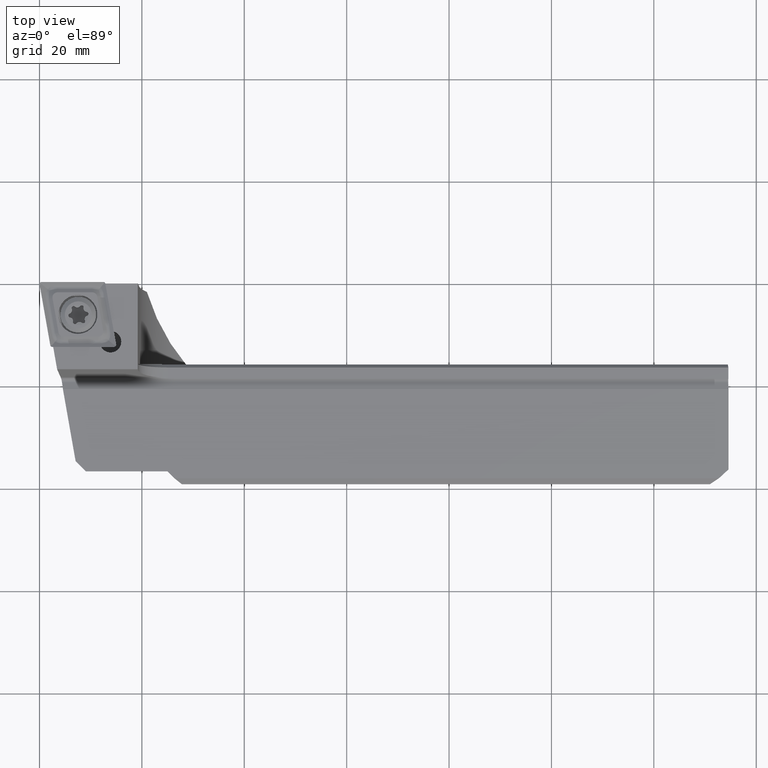
[diagram: clean part render]
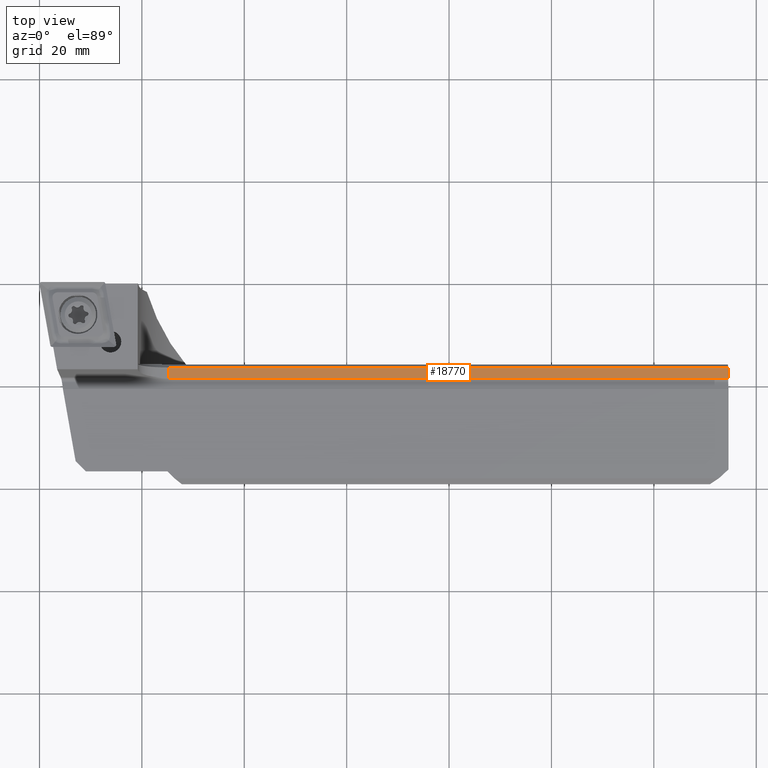
[diagram: same view with one face highlighted and labeled with its STEP entity id]
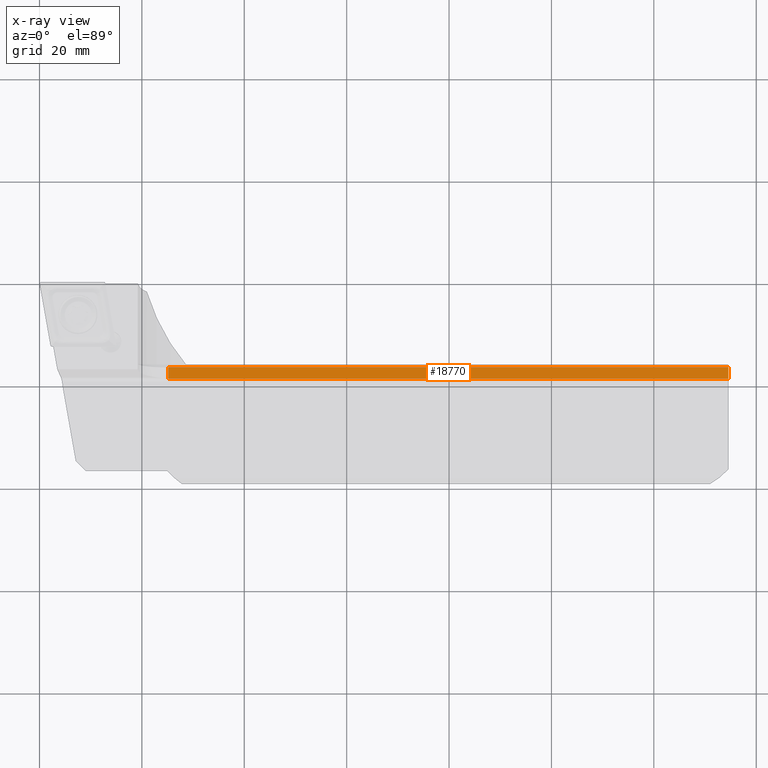
[diagram: x-ray of the same camera — body ghosted, the highlighted face saturated]
A machine part, top view. The second image highlights one B-rep face of the part: STEP entity #18770.
The next image is the same camera in x-ray: the body ghosted, the highlighted face saturated — about 0% of this face is hidden behind the body in this view.
In plain terms, the highlighted planar face has unit normal (-0, -0, -1).
Its self-contained STEP definition (entity closure, byte-faithful):
#34 = VECTOR ( 'NONE', #7114, 1000.000000000000000 ) ;
#1059 = PLANE ( 'NONE',  #13925 ) ;
#2573 = EDGE_CURVE ( 'NONE', #7593, #20589, #6076, .T. ) ;
#4870 = VECTOR ( 'NONE', #17412, 1000.000000000000000 ) ;
#5018 = LINE ( 'NONE', #14571, #34 ) ;
#5399 = EDGE_CURVE ( 'NONE', #21121, #13228, #17436, .T. ) ;
#6076 = LINE ( 'NONE', #17930, #4870 ) ;
#7114 = DIRECTION ( 'NONE',  ( -1.000000000000000000, 0.0000000000000000000, 1.063288424787860800E-017 ) ) ;
#7474 = VECTOR ( 'NONE', #21105, 1000.000000000000000 ) ;
#7593 = VERTEX_POINT ( 'NONE', #10926 ) ;
#8027 = LINE ( 'NONE', #13151, #22426 ) ;
#8366 = FACE_OUTER_BOUND ( 'NONE', #20763, .T. ) ;
#8491 = DIRECTION ( 'NONE',  ( -1.063288424787861000E-017, -2.672371203554440500E-018, -1.000000000000000000 ) ) ;
#10917 = ORIENTED_EDGE ( 'NONE', *, *, #5399, .F. ) ;
#10926 = CARTESIAN_POINT ( 'NONE',  ( 134.5549933636702900, -16.60000000000006500, -6.250000000000004400 ) ) ;
#11541 = ORIENTED_EDGE ( 'NONE', *, *, #21305, .F. ) ;
#13151 = CARTESIAN_POINT ( 'NONE',  ( 25.19979166304964800, -16.60000000000006500, -6.250000000000010700 ) ) ;
#13228 = VERTEX_POINT ( 'NONE', #17853 ) ;
#13925 = AXIS2_PLACEMENT_3D ( 'NONE', #23604, #8491, #14215 ) ;
#14215 = DIRECTION ( 'NONE',  ( -1.000000000000000000, 0.0000000000000000000, 1.063288424787861000E-017 ) ) ;
#14571 = CARTESIAN_POINT ( 'NONE',  ( 135.0000000000000300, -18.80225320414347900, -6.250000000000008000 ) ) ;
#14695 = EDGE_CURVE ( 'NONE', #20589, #21121, #5018, .T. ) ;
#15572 = CARTESIAN_POINT ( 'NONE',  ( 25.19979166304964500, -18.80225320414347200, -6.250000000000009800 ) ) ;
#17412 = DIRECTION ( 'NONE',  ( -0.0000000000000000000, -1.000000000000000000, -1.321484941883489300E-018 ) ) ;
#17436 = LINE ( 'NONE', #19205, #7474 ) ;
#17853 = CARTESIAN_POINT ( 'NONE',  ( 25.19979166304964800, -16.60000000000006500, -6.250000000000010700 ) ) ;
#17924 = ORIENTED_EDGE ( 'NONE', *, *, #2573, .F. ) ;
#17930 = CARTESIAN_POINT ( 'NONE',  ( 134.5549933636702900, -39.90000000000000600, -6.250000000000007100 ) ) ;
#18547 = ORIENTED_EDGE ( 'NONE', *, *, #14695, .F. ) ;
#18770 = ADVANCED_FACE ( 'NONE', ( #8366 ), #1059, .F. ) ;
#18901 = DIRECTION ( 'NONE',  ( 1.000000000000000000, 0.0000000000000000000, -1.063288424787860800E-017 ) ) ;
#19205 = CARTESIAN_POINT ( 'NONE',  ( 25.19979166304964500, -19.30000000000000400, -6.250000000000010700 ) ) ;
#20589 = VERTEX_POINT ( 'NONE', #22185 ) ;
#20763 = EDGE_LOOP ( 'NONE', ( #11541, #10917, #18547, #17924 ) ) ;
#21105 = DIRECTION ( 'NONE',  ( 0.0000000000000000000, 1.000000000000000000, 1.321484941883489300E-018 ) ) ;
#21121 = VERTEX_POINT ( 'NONE', #15572 ) ;
#21305 = EDGE_CURVE ( 'NONE', #13228, #7593, #8027, .T. ) ;
#22185 = CARTESIAN_POINT ( 'NONE',  ( 134.5549933636702900, -18.80225320414343000, -6.250000000000048000 ) ) ;
#22426 = VECTOR ( 'NONE', #18901, 1000.000000000000000 ) ;
#23604 = CARTESIAN_POINT ( 'NONE',  ( 135.0000000000000300, -19.30000000000000800, -6.250000000000006200 ) ) ;